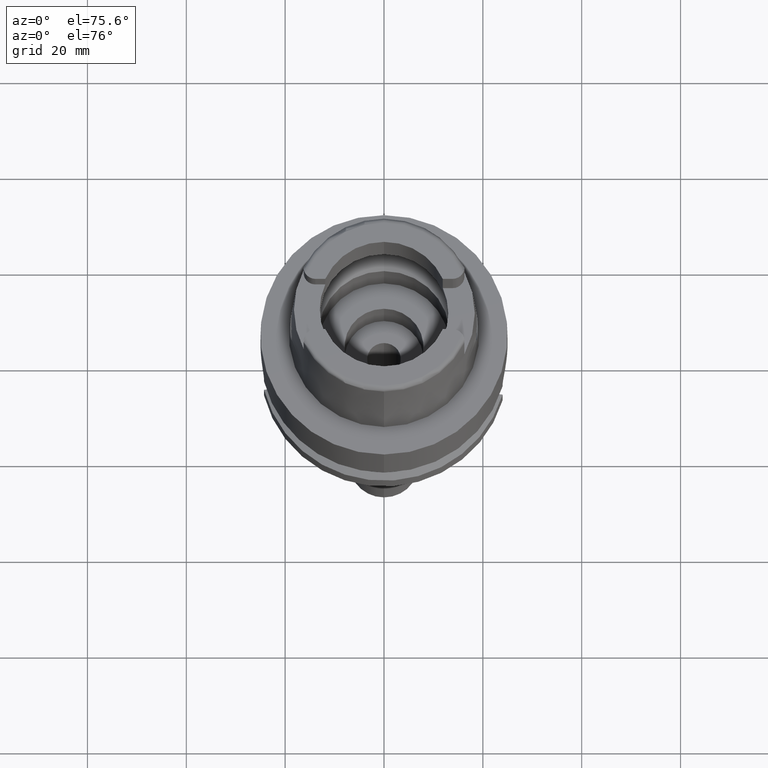
[diagram: clean part render]
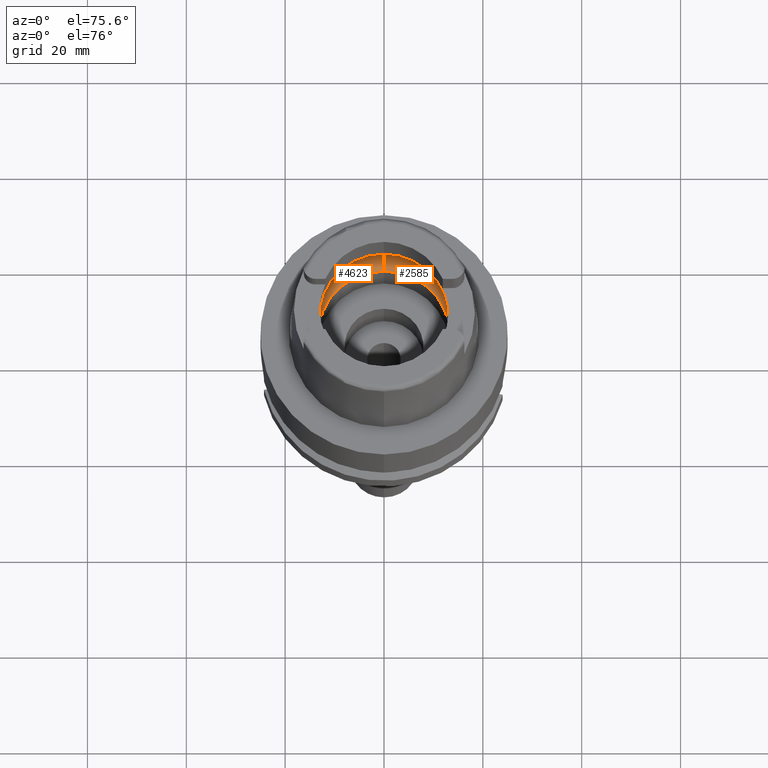
[diagram: same view with one multi-face feature highlighted, each face labeled with its STEP entity id]
A machine part, auxiliary view. The highlighted faces form ONE feature: a constant-radius fillet chain: 2 tangent blend faces with common blend radius 6 mm. The faces share edges in the B-rep.
Their STEP definitions:
[1] entity #2585 (Torus):
#3 = ORIENTED_EDGE ( 'NONE', *, *, #4894, .F. ) ;
#71 = CARTESIAN_POINT ( 'NONE',  ( 15.90436354886000103, -1.746774199932999982, 5.060987926546999915 ) ) ;
#391 = CARTESIAN_POINT ( 'NONE',  ( 15.94481961884416954, 1.284363903353015202, 4.771085202038585216 ) ) ;
#420 = VERTEX_POINT ( 'NONE', #1910 ) ;
#426 = ORIENTED_EDGE ( 'NONE', *, *, #3487, .F. ) ;
#498 = VERTEX_POINT ( 'NONE', #2722 ) ;
#746 = CARTESIAN_POINT ( 'NONE',  ( 15.97371681168999835, 0.3626031211496708595, 4.500000000000000888 ) ) ;
#764 = TOROIDAL_SURFACE ( 'NONE', #4497, 10.00000000000000000, 6.000000000000000000 ) ;
#806 = EDGE_CURVE ( 'NONE', #3424, #1157, #3691, .T. ) ;
#817 = CARTESIAN_POINT ( 'NONE',  ( 0.0000000000000000000, 10.00000000000000000, 5.060987926546999915 ) ) ;
#992 = DIRECTION ( 'NONE',  ( 0.0000000000000000000, 0.0000000000000000000, -1.000000000000000000 ) ) ;
#1087 = DIRECTION ( 'NONE',  ( 0.0000000000000000000, 1.000000000000000000, 0.0000000000000000000 ) ) ;
#1157 = VERTEX_POINT ( 'NONE', #1281 ) ;
#1281 = CARTESIAN_POINT ( 'NONE',  ( 15.90436354886000103, -1.746774199932999982, 5.060987926546999915 ) ) ;
#1313 = CARTESIAN_POINT ( 'NONE',  ( 15.97371681169000190, -0.3626031211944841792, 4.499999999999999112 ) ) ;
#1489 = ORIENTED_EDGE ( 'NONE', *, *, #4522, .T. ) ;
#1703 = CIRCLE ( 'NONE', #1952, 16.00000000000000000 ) ;
#1891 = FACE_OUTER_BOUND ( 'NONE', #3192, .T. ) ;
#1904 = EDGE_CURVE ( 'NONE', #498, #4641, #2644, .T. ) ;
#1910 = CARTESIAN_POINT ( 'NONE',  ( 0.0000000000000000000, -16.00000000000000000, 5.060987926546999915 ) ) ;
#1952 = AXIS2_PLACEMENT_3D ( 'NONE', #2343, #992, #4457 ) ;
#2012 = CARTESIAN_POINT ( 'NONE',  ( 15.97371681168999835, 0.0000000000000000000, 4.500000000000000000 ) ) ;
#2089 = CARTESIAN_POINT ( 'NONE',  ( 0.0000000000000000000, 16.00000000000000000, 5.060987926546999915 ) ) ;
#2100 = CARTESIAN_POINT ( 'NONE',  ( 15.94481961884415888, -1.284363903414167618, 4.771085202067363973 ) ) ;
#2121 = ORIENTED_EDGE ( 'NONE', *, *, #4496, .F. ) ;
#2215 = CIRCLE ( 'NONE', #4487, 13.29999999999999893 ) ;
#2286 = DIRECTION ( 'NONE',  ( 0.0000000000000000000, 0.0000000000000000000, 1.000000000000000000 ) ) ;
#2343 = CARTESIAN_POINT ( 'NONE',  ( 0.0000000000000000000, 0.0000000000000000000, 5.060987926546999915 ) ) ;
#2355 = CIRCLE ( 'NONE', #3600, 5.999999999999993783 ) ;
#2382 = B_SPLINE_CURVE_WITH_KNOTS ( 'NONE', 3,
 ( #3725, #4115, #391, #5370, #746, #2012 ),
 .UNSPECIFIED., .F., .F.,
 ( 4, 2, 4 ),
 ( 0.0000000000000000000, 0.5000000000000000000, 1.000000000000000000 ),
 .UNSPECIFIED. ) ;
#2535 = VERTEX_POINT ( 'NONE', #5113 ) ;
#2585 = ADVANCED_FACE ( 'NONE', ( #1891 ), #764, .F. ) ;
#2593 = ORIENTED_EDGE ( 'NONE', *, *, #806, .F. ) ;
#2603 = DIRECTION ( 'NONE',  ( 0.9940227218040297297, -0.1091733874958031730, 0.0000000000000000000 ) ) ;
#2644 = CIRCLE ( 'NONE', #5176, 5.999999999999993783 ) ;
#2674 = ORIENTED_EDGE ( 'NONE', *, *, #3556, .F. ) ;
#2706 = CARTESIAN_POINT ( 'NONE',  ( 0.0000000000000000000, 0.0000000000000000000, 5.060987926546999915 ) ) ;
#2722 = CARTESIAN_POINT ( 'NONE',  ( 0.0000000000000000000, 13.29999999999999893, 0.05000000000002000067 ) ) ;
#2859 = CARTESIAN_POINT ( 'NONE',  ( 0.0000000000000000000, 0.0000000000000000000, 0.05000000000002000067 ) ) ;
#2996 = CARTESIAN_POINT ( 'NONE',  ( 15.92748130313665911, -1.536287252996665798, 4.910241166277792502 ) ) ;
#3022 = CARTESIAN_POINT ( 'NONE',  ( 15.97371681168999835, 0.0000000000000000000, 4.500000000000000000 ) ) ;
#3055 = AXIS2_PLACEMENT_3D ( 'NONE', #2706, #3905, #2603 ) ;
#3192 = EDGE_LOOP ( 'NONE', ( #2121, #2674, #5027, #426, #1489, #3, #2593 ) ) ;
#3424 = VERTEX_POINT ( 'NONE', #4880 ) ;
#3487 = EDGE_CURVE ( 'NONE', #4915, #498, #2215, .T. ) ;
#3556 = EDGE_CURVE ( 'NONE', #4641, #2535, #1703, .T. ) ;
#3595 = CIRCLE ( 'NONE', #3055, 16.00000000000000355 ) ;
#3600 = AXIS2_PLACEMENT_3D ( 'NONE', #3693, #5339, #4901 ) ;
#3691 = B_SPLINE_CURVE_WITH_KNOTS ( 'NONE', 3,
 ( #3022, #1313, #4612, #2100, #2996, #71 ),
 .UNSPECIFIED., .F., .F.,
 ( 4, 2, 4 ),
 ( 0.0000000000000000000, 0.4999999999999998890, 1.000000000000000000 ),
 .UNSPECIFIED. ) ;
#3693 = CARTESIAN_POINT ( 'NONE',  ( 0.0000000000000000000, -10.00000000000000000, 5.060987926546999915 ) ) ;
#3702 = DIRECTION ( 'NONE',  ( 0.0000000000000000000, 0.0000000000000000000, 1.000000000000000000 ) ) ;
#3725 = CARTESIAN_POINT ( 'NONE',  ( 15.90436354886000103, 1.746774199932999982, 5.060987926546999915 ) ) ;
#3905 = DIRECTION ( 'NONE',  ( 0.0000000000000000000, 0.0000000000000000000, -1.000000000000000000 ) ) ;
#4115 = CARTESIAN_POINT ( 'NONE',  ( 15.92748130313666266, 1.536287252960231609, 4.910241166251698708 ) ) ;
#4125 = DIRECTION ( 'NONE',  ( 0.0000000000000000000, -1.000000000000000000, 0.0000000000000000000 ) ) ;
#4160 = DIRECTION ( 'NONE',  ( 0.0000000000000000000, 0.5500000000000007105, -0.8351646544245028281 ) ) ;
#4456 = CARTESIAN_POINT ( 'NONE',  ( 0.0000000000000000000, 0.0000000000000000000, 5.060987926546999915 ) ) ;
#4457 = DIRECTION ( 'NONE',  ( 0.0000000000000000000, 1.000000000000000000, 0.0000000000000000000 ) ) ;
#4487 = AXIS2_PLACEMENT_3D ( 'NONE', #2859, #3702, #4125 ) ;
#4496 = EDGE_CURVE ( 'NONE', #2535, #3424, #2382, .T. ) ;
#4497 = AXIS2_PLACEMENT_3D ( 'NONE', #4456, #2286, #1087 ) ;
#4522 = EDGE_CURVE ( 'NONE', #4915, #420, #2355, .T. ) ;
#4612 = CARTESIAN_POINT ( 'NONE',  ( 15.96793737312083827, -0.6977532816205072042, 4.565769782590875181 ) ) ;
#4641 = VERTEX_POINT ( 'NONE', #2089 ) ;
#4704 = CARTESIAN_POINT ( 'NONE',  ( 0.0000000000000000000, -13.29999999999999893, 0.05000000000002000067 ) ) ;
#4880 = CARTESIAN_POINT ( 'NONE',  ( 15.97371681168999835, 0.0000000000000000000, 4.500000000000000000 ) ) ;
#4894 = EDGE_CURVE ( 'NONE', #1157, #420, #3595, .T. ) ;
#4901 = DIRECTION ( 'NONE',  ( 0.0000000000000000000, -0.5500000000000007105, -0.8351646544245028281 ) ) ;
#4915 = VERTEX_POINT ( 'NONE', #4704 ) ;
#5027 = ORIENTED_EDGE ( 'NONE', *, *, #1904, .F. ) ;
#5113 = CARTESIAN_POINT ( 'NONE',  ( 15.90436354886000103, 1.746774199932999982, 5.060987926546999915 ) ) ;
#5176 = AXIS2_PLACEMENT_3D ( 'NONE', #817, #5382, #4160 ) ;
#5339 = DIRECTION ( 'NONE',  ( -1.000000000000000000, 0.0000000000000000000, 0.0000000000000000000 ) ) ;
#5370 = CARTESIAN_POINT ( 'NONE',  ( 15.96793737312082406, 0.6977532815547548006, 4.565769782575238800 ) ) ;
#5382 = DIRECTION ( 'NONE',  ( 1.000000000000000000, 0.0000000000000000000, 0.0000000000000000000 ) ) ;
[2] entity #4623 (Torus):
#237 = B_SPLINE_CURVE_WITH_KNOTS ( 'NONE', 3,
 ( #721, #2392, #2041, #1985, #307, #3727 ),
 .UNSPECIFIED., .F., .F.,
 ( 4, 2, 4 ),
 ( 0.0000000000000000000, 0.4999999999999998890, 1.000000000000000000 ),
 .UNSPECIFIED. ) ;
#307 = CARTESIAN_POINT ( 'NONE',  ( -15.97371681168999480, -0.3626031211852542291, 4.499999999999999112 ) ) ;
#420 = VERTEX_POINT ( 'NONE', #1910 ) ;
#498 = VERTEX_POINT ( 'NONE', #2722 ) ;
#699 = EDGE_CURVE ( 'NONE', #3649, #1971, #1728, .T. ) ;
#721 = CARTESIAN_POINT ( 'NONE',  ( -15.90436354886000103, -1.746774199932999982, 5.060987926546999915 ) ) ;
#767 = CIRCLE ( 'NONE', #4155, 16.00000000000000355 ) ;
#783 = EDGE_CURVE ( 'NONE', #1971, #4641, #767, .T. ) ;
#817 = CARTESIAN_POINT ( 'NONE',  ( 0.0000000000000000000, 10.00000000000000000, 5.060987926546999915 ) ) ;
#818 = EDGE_LOOP ( 'NONE', ( #4687, #3918, #4324, #1042, #1312, #1669, #4886 ) ) ;
#914 = EDGE_CURVE ( 'NONE', #1532, #3649, #237, .T. ) ;
#930 = EDGE_CURVE ( 'NONE', #498, #4915, #3374, .T. ) ;
#1042 = ORIENTED_EDGE ( 'NONE', *, *, #1904, .T. ) ;
#1199 = DIRECTION ( 'NONE',  ( 0.0000000000000000000, -1.000000000000000000, 0.0000000000000000000 ) ) ;
#1241 = CARTESIAN_POINT ( 'NONE',  ( -15.97371681168999835, 0.0000000000000000000, 4.500000000000000000 ) ) ;
#1312 = ORIENTED_EDGE ( 'NONE', *, *, #783, .F. ) ;
#1532 = VERTEX_POINT ( 'NONE', #4108 ) ;
#1669 = ORIENTED_EDGE ( 'NONE', *, *, #699, .F. ) ;
#1727 = CARTESIAN_POINT ( 'NONE',  ( -15.94481961884416599, 1.284363903428305420, 4.771085202074019094 ) ) ;
#1728 = B_SPLINE_CURVE_WITH_KNOTS ( 'NONE', 3,
 ( #1241, #2890, #4559, #1727, #3368, #5102 ),
 .UNSPECIFIED., .F., .F.,
 ( 4, 2, 4 ),
 ( 0.0000000000000000000, 0.5000000000000000000, 1.000000000000000000 ),
 .UNSPECIFIED. ) ;
#1904 = EDGE_CURVE ( 'NONE', #498, #4641, #2644, .T. ) ;
#1910 = CARTESIAN_POINT ( 'NONE',  ( 0.0000000000000000000, -16.00000000000000000, 5.060987926546999915 ) ) ;
#1971 = VERTEX_POINT ( 'NONE', #3987 ) ;
#1985 = CARTESIAN_POINT ( 'NONE',  ( -15.96793737312083117, -0.6977532816069654809, 4.565769782587653758 ) ) ;
#2041 = CARTESIAN_POINT ( 'NONE',  ( -15.94481961884416954, -1.284363903401574358, 4.771085202061439823 ) ) ;
#2089 = CARTESIAN_POINT ( 'NONE',  ( 0.0000000000000000000, 16.00000000000000000, 5.060987926546999915 ) ) ;
#2205 = CIRCLE ( 'NONE', #4143, 16.00000000000000000 ) ;
#2355 = CIRCLE ( 'NONE', #3600, 5.999999999999993783 ) ;
#2392 = CARTESIAN_POINT ( 'NONE',  ( -15.92748130313667154, -1.536287252989162022, 4.910241166272420799 ) ) ;
#2644 = CIRCLE ( 'NONE', #5176, 5.999999999999993783 ) ;
#2659 = CARTESIAN_POINT ( 'NONE',  ( -15.97371681168999835, 0.0000000000000000000, 4.500000000000000000 ) ) ;
#2661 = AXIS2_PLACEMENT_3D ( 'NONE', #4088, #5311, #4843 ) ;
#2722 = CARTESIAN_POINT ( 'NONE',  ( 0.0000000000000000000, 13.29999999999999893, 0.05000000000002000067 ) ) ;
#2845 = EDGE_CURVE ( 'NONE', #420, #1532, #2205, .T. ) ;
#2890 = CARTESIAN_POINT ( 'NONE',  ( -15.97371681168999835, 0.3626031212048507202, 4.500000000000000000 ) ) ;
#2934 = CARTESIAN_POINT ( 'NONE',  ( 0.0000000000000000000, 0.0000000000000000000, 5.060987926546999915 ) ) ;
#3328 = DIRECTION ( 'NONE',  ( 0.0000000000000000000, 1.000000000000000000, 0.0000000000000000000 ) ) ;
#3340 = DIRECTION ( 'NONE',  ( 0.0000000000000000000, 0.0000000000000000000, -1.000000000000000000 ) ) ;
#3368 = CARTESIAN_POINT ( 'NONE',  ( -15.92748130313666799, 1.536287253005093056, 4.910241166283829450 ) ) ;
#3374 = CIRCLE ( 'NONE', #2661, 13.29999999999999893 ) ;
#3420 = DIRECTION ( 'NONE',  ( -0.9940227218040297297, 0.1091733874958031730, 0.0000000000000000000 ) ) ;
#3600 = AXIS2_PLACEMENT_3D ( 'NONE', #3693, #5339, #4901 ) ;
#3649 = VERTEX_POINT ( 'NONE', #2659 ) ;
#3693 = CARTESIAN_POINT ( 'NONE',  ( 0.0000000000000000000, -10.00000000000000000, 5.060987926546999915 ) ) ;
#3727 = CARTESIAN_POINT ( 'NONE',  ( -15.97371681168999835, 0.0000000000000000000, 4.500000000000000000 ) ) ;
#3749 = FACE_OUTER_BOUND ( 'NONE', #818, .T. ) ;
#3918 = ORIENTED_EDGE ( 'NONE', *, *, #4522, .F. ) ;
#3987 = CARTESIAN_POINT ( 'NONE',  ( -15.90436354886000103, 1.746774199932999982, 5.060987926546999915 ) ) ;
#4088 = CARTESIAN_POINT ( 'NONE',  ( 0.0000000000000000000, 0.0000000000000000000, 0.05000000000002000067 ) ) ;
#4108 = CARTESIAN_POINT ( 'NONE',  ( -15.90436354886000103, -1.746774199932999982, 5.060987926546999915 ) ) ;
#4143 = AXIS2_PLACEMENT_3D ( 'NONE', #4916, #5357, #1199 ) ;
#4155 = AXIS2_PLACEMENT_3D ( 'NONE', #5025, #3340, #3420 ) ;
#4160 = DIRECTION ( 'NONE',  ( 0.0000000000000000000, 0.5500000000000007105, -0.8351646544245028281 ) ) ;
#4204 = TOROIDAL_SURFACE ( 'NONE', #4709, 10.00000000000000000, 6.000000000000000000 ) ;
#4324 = ORIENTED_EDGE ( 'NONE', *, *, #930, .F. ) ;
#4522 = EDGE_CURVE ( 'NONE', #4915, #420, #2355, .T. ) ;
#4559 = CARTESIAN_POINT ( 'NONE',  ( -15.96793737312083827, 0.6977532816357100431, 4.565769782594490067 ) ) ;
#4607 = DIRECTION ( 'NONE',  ( 0.0000000000000000000, 0.0000000000000000000, 1.000000000000000000 ) ) ;
#4623 = ADVANCED_FACE ( 'NONE', ( #3749 ), #4204, .F. ) ;
#4641 = VERTEX_POINT ( 'NONE', #2089 ) ;
#4687 = ORIENTED_EDGE ( 'NONE', *, *, #2845, .F. ) ;
#4704 = CARTESIAN_POINT ( 'NONE',  ( 0.0000000000000000000, -13.29999999999999893, 0.05000000000002000067 ) ) ;
#4709 = AXIS2_PLACEMENT_3D ( 'NONE', #2934, #4607, #3328 ) ;
#4843 = DIRECTION ( 'NONE',  ( 0.0000000000000000000, 1.000000000000000000, 0.0000000000000000000 ) ) ;
#4886 = ORIENTED_EDGE ( 'NONE', *, *, #914, .F. ) ;
#4901 = DIRECTION ( 'NONE',  ( 0.0000000000000000000, -0.5500000000000007105, -0.8351646544245028281 ) ) ;
#4915 = VERTEX_POINT ( 'NONE', #4704 ) ;
#4916 = CARTESIAN_POINT ( 'NONE',  ( 0.0000000000000000000, 0.0000000000000000000, 5.060987926546999915 ) ) ;
#5025 = CARTESIAN_POINT ( 'NONE',  ( 0.0000000000000000000, 0.0000000000000000000, 5.060987926546999915 ) ) ;
#5102 = CARTESIAN_POINT ( 'NONE',  ( -15.90436354886000103, 1.746774199932999982, 5.060987926546999915 ) ) ;
#5176 = AXIS2_PLACEMENT_3D ( 'NONE', #817, #5382, #4160 ) ;
#5311 = DIRECTION ( 'NONE',  ( 0.0000000000000000000, 0.0000000000000000000, 1.000000000000000000 ) ) ;
#5339 = DIRECTION ( 'NONE',  ( -1.000000000000000000, 0.0000000000000000000, 0.0000000000000000000 ) ) ;
#5357 = DIRECTION ( 'NONE',  ( 0.0000000000000000000, 0.0000000000000000000, -1.000000000000000000 ) ) ;
#5382 = DIRECTION ( 'NONE',  ( 1.000000000000000000, 0.0000000000000000000, 0.0000000000000000000 ) ) ;